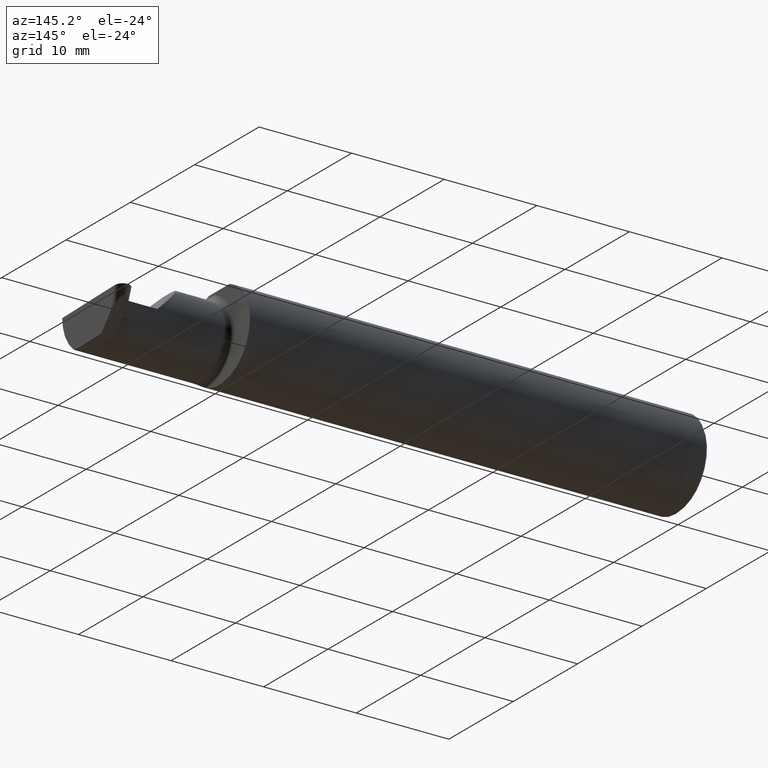
[diagram: clean part render]
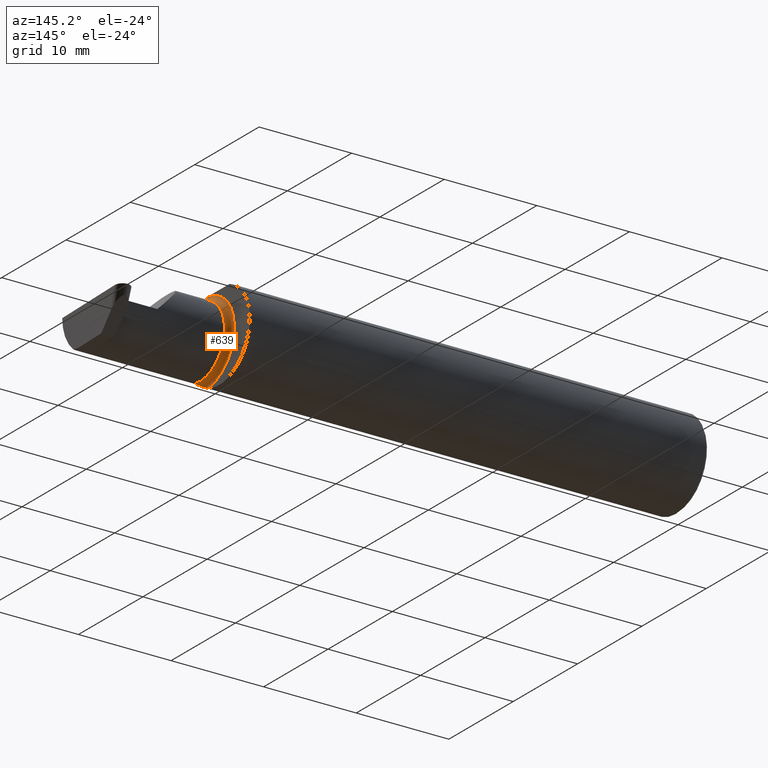
[diagram: same view with one face highlighted and labeled with its STEP entity id]
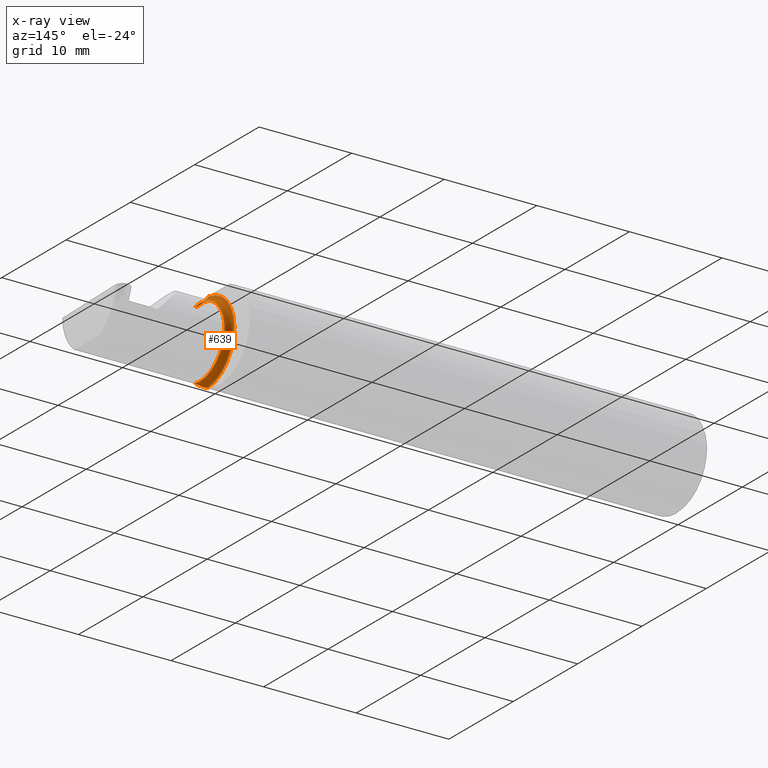
[diagram: x-ray of the same camera — body ghosted, the highlighted face saturated]
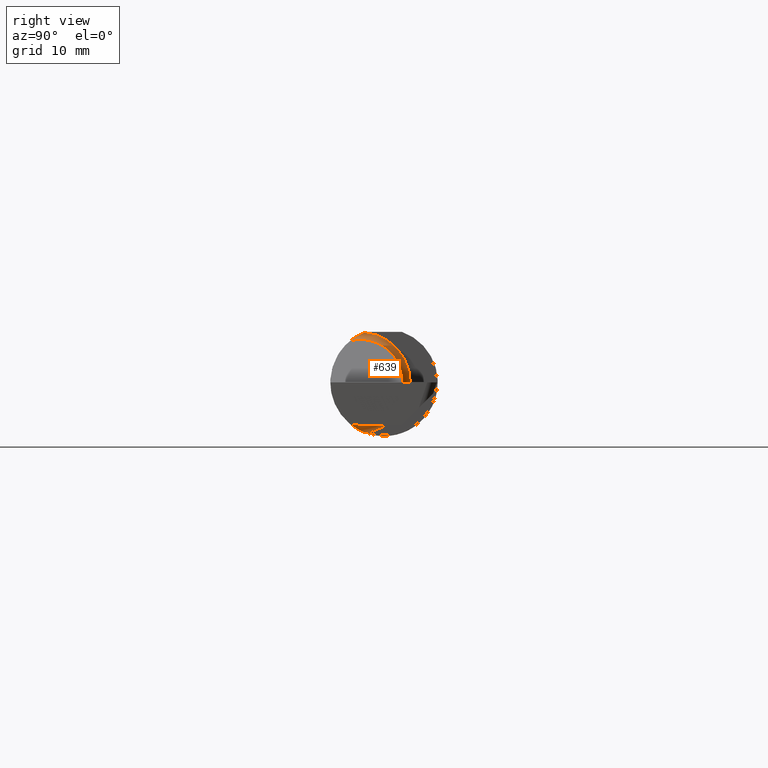
[diagram: same view with one face highlighted and labeled with its STEP entity id]
A machine part, auxiliary view. The second image highlights one B-rep face of the part: STEP entity #639.
The next image is the same camera in x-ray: the body ghosted, the highlighted face saturated — about 0% of this face is hidden behind the body in this view.
A second angle (right view) of the same face is appended — the face is thin or edge-on in the first view.
In plain terms, the highlighted toroidal blend (fillet) surface has major radius 4.445 mm and minor (blend) radius 0.635 mm.
Its self-contained STEP definition (entity closure, byte-faithful):
#34 = CARTESIAN_POINT ( 'NONE',  ( 1.949999999999999956, -0.08335000000000000742, 0.000000000000000000 ) ) ;
#48 = CARTESIAN_POINT ( 'NONE',  ( 1.951829077486400221, -0.08839624499054647699, 0.1652742498708037466 ) ) ;
#52 = CARTESIAN_POINT ( 'NONE',  ( 1.974999999999999867, -0.1172600179964006784, 0.1461167706989303650 ) ) ;
#55 = VERTEX_POINT ( 'NONE', #128 ) ;
#89 = CARTESIAN_POINT ( 'NONE',  ( 1.951843912362378308, -0.08846956905169088559, -0.1652353808078972919 ) ) ;
#90 = DIRECTION ( 'NONE',  ( -1.000000000000000000, -3.506966766154694863E-17, -0.000000000000000000 ) ) ;
#102 = B_SPLINE_CURVE_WITH_KNOTS ( 'NONE', 3,
 ( #308, #151, #202, #48, #683, #344, #567, #254, #704, #397, #171, #454 ),
 .UNSPECIFIED., .F., .F.,
 ( 4, 2, 2, 2, 2, 4 ),
 ( 4.423516731080767705E-05, 0.0004615475116586702166, 0.0008788598560065327562, 0.001296172200354395350, 0.001504828372528326267, 0.001713484544702257402 ),
 .UNSPECIFIED. ) ;
#109 = ORIENTED_EDGE ( 'NONE', *, *, #219, .T. ) ;
#113 = VERTEX_POINT ( 'NONE', #52 ) ;
#114 = EDGE_CURVE ( 'NONE', #650, #113, #102, .T. ) ;
#128 = CARTESIAN_POINT ( 'NONE',  ( 1.949999999999999956, -0.06851976604679065053, -0.1743704796142198643 ) ) ;
#137 = VERTEX_POINT ( 'NONE', #299 ) ;
#140 = DIRECTION ( 'NONE',  ( 3.506966766154694863E-17, -1.000000000000000000, 0.000000000000000000 ) ) ;
#144 = CARTESIAN_POINT ( 'NONE',  ( 1.949999999999999956, -0.06851976604679065053, 0.1743704796142198643 ) ) ;
#151 = CARTESIAN_POINT ( 'NONE',  ( 1.949999999999999956, -0.07367581953296703512, 0.1723443821957854338 ) ) ;
#171 = CARTESIAN_POINT ( 'NONE',  ( 1.972161949849307927, -0.1172600179964061184, 0.1461167706989260073 ) ) ;
#188 = DIRECTION ( 'NONE',  ( 0.000000000000000000, -1.000000000000000000, 0.000000000000000000 ) ) ;
#202 = CARTESIAN_POINT ( 'NONE',  ( 1.950353553376444671, -0.07868116735658675642, 0.1701139256562800295 ) ) ;
#205 = CIRCLE ( 'NONE', #468, 0.1500000000000000500 ) ;
#217 = AXIS2_PLACEMENT_3D ( 'NONE', #319, #700, #140 ) ;
#219 = EDGE_CURVE ( 'NONE', #113, #137, #205, .T. ) ;
#236 = CARTESIAN_POINT ( 'NONE',  ( 1.972174967710398796, -0.1172600179964006228, -0.1461167706989304205 ) ) ;
#253 = CARTESIAN_POINT ( 'NONE',  ( 1.974999999999999867, -0.08335000000000000742, 0.000000000000000000 ) ) ;
#254 = CARTESIAN_POINT ( 'NONE',  ( 1.963163223656403389, -0.1119926267047277602, 0.1502091925606062750 ) ) ;
#264 = EDGE_CURVE ( 'NONE', #650, #55, #562, .T. ) ;
#288 = ORIENTED_EDGE ( 'NONE', *, *, #529, .T. ) ;
#299 = CARTESIAN_POINT ( 'NONE',  ( 1.974999999999999867, -0.1172600179964005396, -0.1461167706989303927 ) ) ;
#300 = CARTESIAN_POINT ( 'NONE',  ( 1.949999999999999956, -0.06851976604679065053, -0.1743704796142198643 ) ) ;
#301 = DIRECTION ( 'NONE',  ( 0.000000000000000000, -1.000000000000000000, 0.000000000000000000 ) ) ;
#308 = CARTESIAN_POINT ( 'NONE',  ( 1.949999999999999956, -0.06851976604679065053, 0.1743704796142198643 ) ) ;
#310 = ORIENTED_EDGE ( 'NONE', *, *, #114, .T. ) ;
#312 = B_SPLINE_CURVE_WITH_KNOTS ( 'NONE', 3,
 ( #626, #236, #517, #456, #581, #411, #677, #510, #89, #460, #681, #300 ),
 .UNSPECIFIED., .F., .F.,
 ( 4, 2, 2, 2, 2, 4 ),
 ( 1.967976973726874814E-07, 0.0002120314145722347263, 0.0004238660314470967276, 0.0008475352651968083703, 0.001271204498946519905, 0.001694873732696231547 ),
 .UNSPECIFIED. ) ;
#319 = CARTESIAN_POINT ( 'NONE',  ( 1.974999999999999867, -0.08334999999999999354, 0.000000000000000000 ) ) ;
#341 = AXIS2_PLACEMENT_3D ( 'NONE', #34, #90, #301 ) ;
#344 = CARTESIAN_POINT ( 'NONE',  ( 1.956287624083520305, -0.1021858045380145824, 0.1571187174372875861 ) ) ;
#397 = CARTESIAN_POINT ( 'NONE',  ( 1.969481469043492305, -0.1163560528186166343, 0.1468472430636323378 ) ) ;
#411 = CARTESIAN_POINT ( 'NONE',  ( 1.958439486659306894, -0.1064616213911157294, -0.1542305641651501580 ) ) ;
#454 = CARTESIAN_POINT ( 'NONE',  ( 1.974999999999999867, -0.1172600179964006784, 0.1461167706989303650 ) ) ;
#456 = CARTESIAN_POINT ( 'NONE',  ( 1.965028532764137914, -0.1137241120808234196, -0.1488947809299404346 ) ) ;
#460 = CARTESIAN_POINT ( 'NONE',  ( 1.950358271039143165, -0.07873626113568077400, -0.1700887912276895508 ) ) ;
#468 = AXIS2_PLACEMENT_3D ( 'NONE', #253, #682, #188 ) ;
#510 = CARTESIAN_POINT ( 'NONE',  ( 1.952960551809340917, -0.09317341542745738447, -0.1626248379125197208 ) ) ;
#517 = CARTESIAN_POINT ( 'NONE',  ( 1.969511795768554396, -0.1163687266324233555, -0.1468371510166789906 ) ) ;
#529 = EDGE_CURVE ( 'NONE', #137, #55, #312, .T. ) ;
#553 = EDGE_LOOP ( 'NONE', ( #310, #109, #288, #610 ) ) ;
#562 = CIRCLE ( 'NONE', #341, 0.1749999999999999889 ) ;
#567 = CARTESIAN_POINT ( 'NONE',  ( 1.958475602106621860, -0.1064978748893406074, 0.1542035505680383611 ) ) ;
#581 = CARTESIAN_POINT ( 'NONE',  ( 1.963203859946833330, -0.1120371980050637317, -0.1501764597936559864 ) ) ;
#610 = ORIENTED_EDGE ( 'NONE', *, *, #264, .F. ) ;
#626 = CARTESIAN_POINT ( 'NONE',  ( 1.974999999999999867, -0.1172600179964005396, -0.1461167706989303927 ) ) ;
#639 = ADVANCED_FACE ( 'NONE', ( #708 ), #701, .F. ) ;
#650 = VERTEX_POINT ( 'NONE', #144 ) ;
#677 = CARTESIAN_POINT ( 'NONE',  ( 1.956304331342286762, -0.1022198306720689676, -0.1570962426853819427 ) ) ;
#681 = CARTESIAN_POINT ( 'NONE',  ( 1.949999999999999067, -0.07368234487347190276, -0.1723418180300748115 ) ) ;
#682 = DIRECTION ( 'NONE',  ( -1.000000000000000000, -3.506966766154694863E-17, -0.000000000000000000 ) ) ;
#683 = CARTESIAN_POINT ( 'NONE',  ( 1.952945243422982591, -0.09312071749437422774, 0.1626553472577906834 ) ) ;
#700 = DIRECTION ( 'NONE',  ( -1.000000000000000000, -3.506966766154694863E-17, -0.000000000000000000 ) ) ;
#701 = TOROIDAL_SURFACE ( 'NONE', #217, 0.1749999999999999889, 0.02499999999999994588 ) ;
#704 = CARTESIAN_POINT ( 'NONE',  ( 1.965004157323697598, -0.1137044537483316436, 0.1489098419202428414 ) ) ;
#708 = FACE_OUTER_BOUND ( 'NONE', #553, .T. ) ;